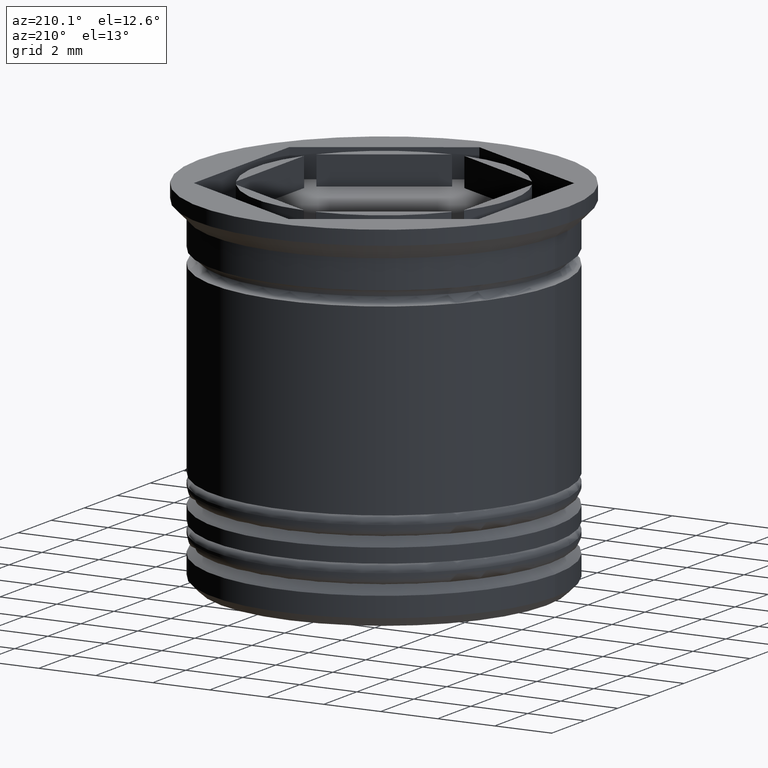
[diagram: clean part render]
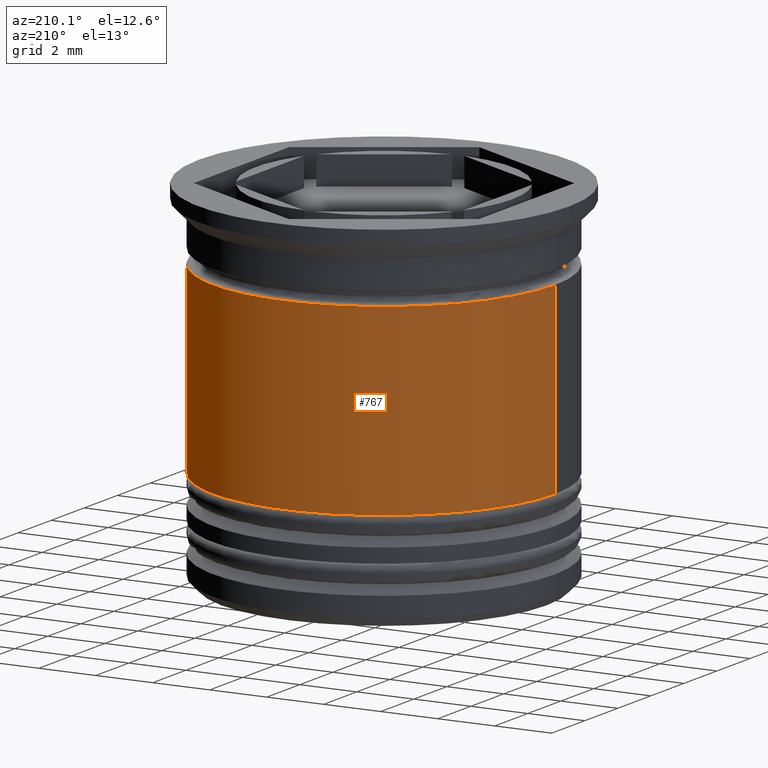
[diagram: same view with one face highlighted and labeled with its STEP entity id]
A machine part, auxiliary view. The second image highlights one B-rep face of the part: STEP entity #767.
In plain terms, the highlighted cylindrical surface (partial cylindrical patch) has radius 6 mm, axis along (-0, -0, 1).
Its self-contained STEP definition (entity closure, byte-faithful):
#6 = CARTESIAN_POINT ( 'NONE',  ( 0.000000000000000000, 0.000000000000000000, -9.000000000000001776 ) ) ;
#14 = CIRCLE ( 'NONE', #799, 5.999999999999999112 ) ;
#20 = CARTESIAN_POINT ( 'NONE',  ( -5.999999999999999112, 7.347880794884118750E-16, -2.500000000000000000 ) ) ;
#36 = LINE ( 'NONE', #1130, #428 ) ;
#66 = ORIENTED_EDGE ( 'NONE', *, *, #1354, .F. ) ;
#140 = EDGE_CURVE ( 'NONE', #290, #817, #1840, .T. ) ;
#182 = CARTESIAN_POINT ( 'NONE',  ( 0.000000000000000000, 0.000000000000000000, -2.500000000000000000 ) ) ;
#251 = CARTESIAN_POINT ( 'NONE',  ( -6.000000000000001776, 7.347880794884121708E-16, -9.000000000000001776 ) ) ;
#267 = EDGE_CURVE ( 'NONE', #817, #1353, #36, .T. ) ;
#276 = CARTESIAN_POINT ( 'NONE',  ( 6.000000000000000000, 0.000000000000000000, 0.000000000000000000 ) ) ;
#290 = VERTEX_POINT ( 'NONE', #499 ) ;
#361 = EDGE_LOOP ( 'NONE', ( #1229, #532, #66, #819 ) ) ;
#428 = VECTOR ( 'NONE', #1283, 1000.000000000000000 ) ;
#492 = AXIS2_PLACEMENT_3D ( 'NONE', #1646, #1135, #1779 ) ;
#499 = CARTESIAN_POINT ( 'NONE',  ( 6.000000000000001776, 0.000000000000000000, -9.000000000000001776 ) ) ;
#532 = ORIENTED_EDGE ( 'NONE', *, *, #267, .T. ) ;
#581 = LINE ( 'NONE', #276, #1086 ) ;
#623 = DIRECTION ( 'NONE',  ( -0.000000000000000000, -0.000000000000000000, 1.000000000000000000 ) ) ;
#767 = ADVANCED_FACE ( 'NONE', ( #1032 ), #1437, .T. ) ;
#799 = AXIS2_PLACEMENT_3D ( 'NONE', #182, #1554, #1109 ) ;
#817 = VERTEX_POINT ( 'NONE', #251 ) ;
#819 = ORIENTED_EDGE ( 'NONE', *, *, #1224, .F. ) ;
#826 = AXIS2_PLACEMENT_3D ( 'NONE', #6, #623, #1822 ) ;
#884 = VERTEX_POINT ( 'NONE', #1351 ) ;
#900 = DIRECTION ( 'NONE',  ( -0.000000000000000000, -0.000000000000000000, 1.000000000000000000 ) ) ;
#1032 = FACE_OUTER_BOUND ( 'NONE', #361, .T. ) ;
#1086 = VECTOR ( 'NONE', #900, 1000.000000000000000 ) ;
#1109 = DIRECTION ( 'NONE',  ( 1.000000000000000000, 0.000000000000000000, 0.000000000000000000 ) ) ;
#1130 = CARTESIAN_POINT ( 'NONE',  ( -6.000000000000000000, 7.347880794884119736E-16, 0.000000000000000000 ) ) ;
#1135 = DIRECTION ( 'NONE',  ( -0.000000000000000000, -0.000000000000000000, 1.000000000000000000 ) ) ;
#1224 = EDGE_CURVE ( 'NONE', #290, #884, #581, .T. ) ;
#1229 = ORIENTED_EDGE ( 'NONE', *, *, #140, .T. ) ;
#1283 = DIRECTION ( 'NONE',  ( -0.000000000000000000, -0.000000000000000000, 1.000000000000000000 ) ) ;
#1351 = CARTESIAN_POINT ( 'NONE',  ( 5.999999999999999112, 0.000000000000000000, -2.500000000000000000 ) ) ;
#1353 = VERTEX_POINT ( 'NONE', #20 ) ;
#1354 = EDGE_CURVE ( 'NONE', #884, #1353, #14, .T. ) ;
#1437 = CYLINDRICAL_SURFACE ( 'NONE', #492, 6.000000000000000000 ) ;
#1554 = DIRECTION ( 'NONE',  ( -0.000000000000000000, -0.000000000000000000, 1.000000000000000000 ) ) ;
#1646 = CARTESIAN_POINT ( 'NONE',  ( 0.000000000000000000, 0.000000000000000000, 0.000000000000000000 ) ) ;
#1779 = DIRECTION ( 'NONE',  ( 1.000000000000000000, 0.000000000000000000, 0.000000000000000000 ) ) ;
#1822 = DIRECTION ( 'NONE',  ( 1.000000000000000000, 0.000000000000000000, 0.000000000000000000 ) ) ;
#1840 = CIRCLE ( 'NONE', #826, 6.000000000000001776 ) ;